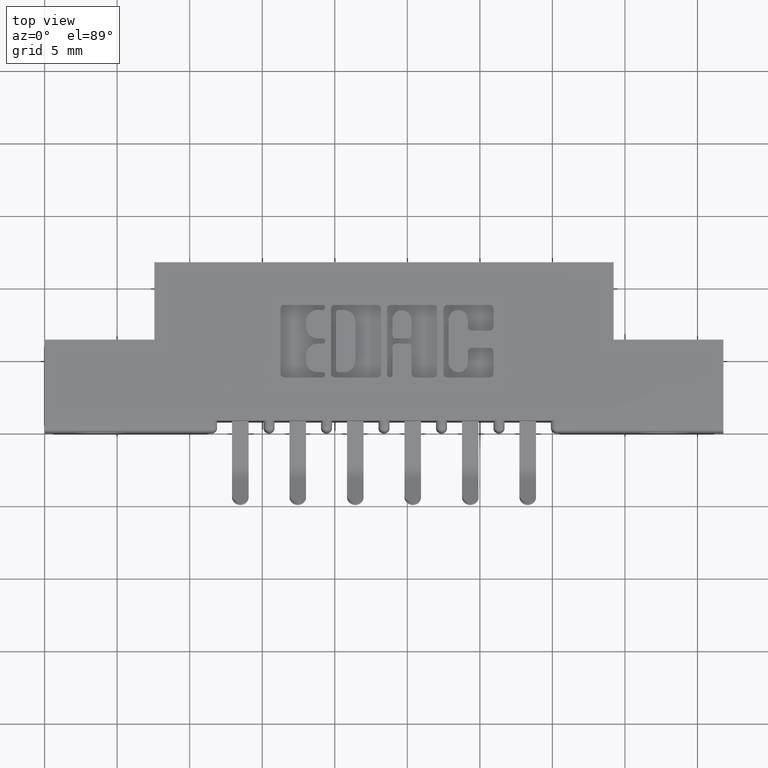
[diagram: clean part render]
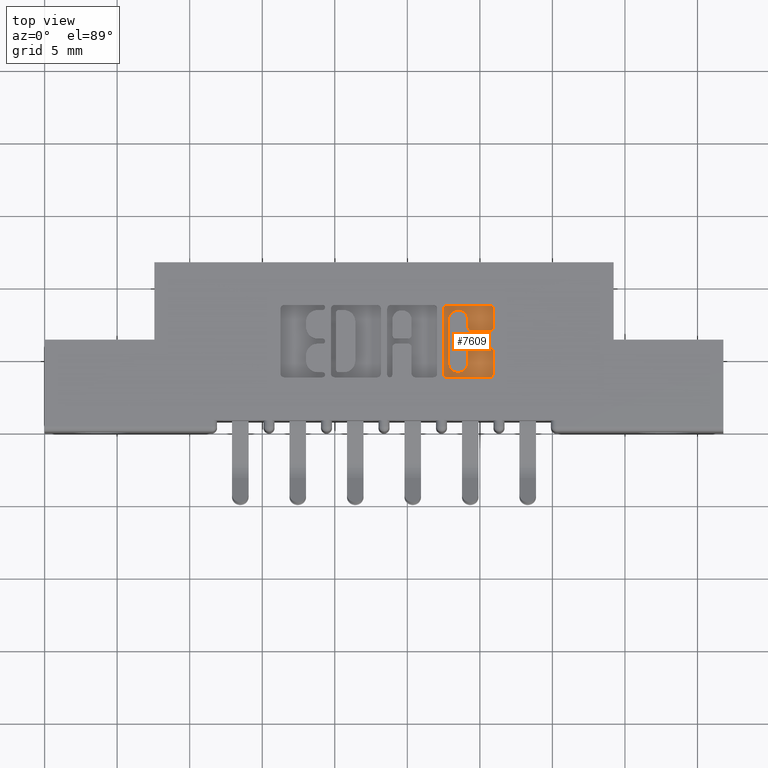
[diagram: same view with one face highlighted and labeled with its STEP entity id]
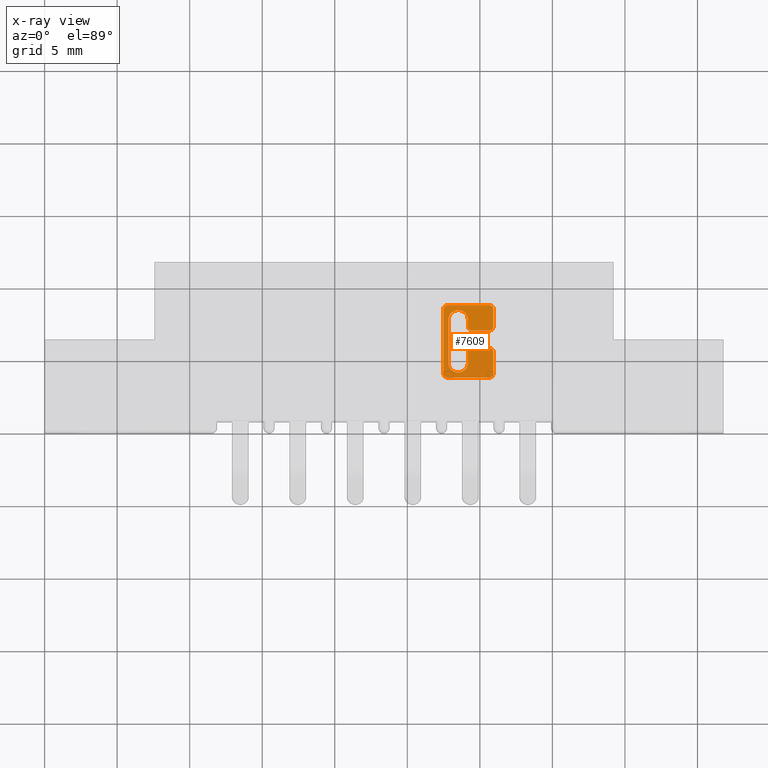
[diagram: x-ray of the same camera — body ghosted, the highlighted face saturated]
A machine part, top view. The second image highlights one B-rep face of the part: STEP entity #7609.
The next image is the same camera in x-ray: the body ghosted, the highlighted face saturated — about 0% of this face is hidden behind the body in this view.
In plain terms, the highlighted planar face has unit normal (0, 0, 1).
Its self-contained STEP definition (entity closure, byte-faithful):
#71 = LINE ( 'NONE', #11065, #3608 ) ;
#191 = CARTESIAN_POINT ( 'NONE',  ( 1.092038053301299700, 0.3338410318342129300, -0.01000000000000000000 ) ) ;
#378 = VERTEX_POINT ( 'NONE', #1922 ) ;
#396 = CARTESIAN_POINT ( 'NONE',  ( 0.0000000000000000000, 0.1473432979619860000, -0.01000000000000000000 ) ) ;
#532 = CIRCLE ( 'NONE', #11893, 0.009815670203806345400 ) ;
#617 = DIRECTION ( 'NONE',  ( 1.000000000000000000, 0.0000000000000000000, 0.0000000000000000000 ) ) ;
#834 = DIRECTION ( 'NONE',  ( -0.0000000000000000000, 0.0000000000000000000, 1.000000000000000000 ) ) ;
#968 = CIRCLE ( 'NONE', #1345, 0.02625691779518022500 ) ;
#983 = VECTOR ( 'NONE', #3411, 39.37007874015748100 ) ;
#1052 = DIRECTION ( 'NONE',  ( -0.0000000000000000000, 0.0000000000000000000, 1.000000000000000000 ) ) ;
#1060 = VERTEX_POINT ( 'NONE', #3139 ) ;
#1065 = CARTESIAN_POINT ( 'NONE',  ( 1.217678631909972400, 0.0000000000000000000, -0.01000000000000000000 ) ) ;
#1075 = AXIS2_PLACEMENT_3D ( 'NONE', #1984, #4944, #2025 ) ;
#1110 = LINE ( 'NONE', #11404, #7109 ) ;
#1145 = CIRCLE ( 'NONE', #4721, 0.009815670203840084000 ) ;
#1159 = LINE ( 'NONE', #1065, #10707 ) ;
#1321 = DIRECTION ( 'NONE',  ( 1.000000000000000000, 0.0000000000000000000, 0.0000000000000000000 ) ) ;
#1342 = ORIENTED_EDGE ( 'NONE', *, *, #8983, .T. ) ;
#1345 = AXIS2_PLACEMENT_3D ( 'NONE', #7466, #834, #3555 ) ;
#1363 = DIRECTION ( 'NONE',  ( -0.0000000000000000000, 0.0000000000000000000, 1.000000000000000000 ) ) ;
#1442 = CARTESIAN_POINT ( 'NONE',  ( 1.095964321382818700, 0.3036578459575323700, -0.01000000000000000000 ) ) ;
#1517 = CARTESIAN_POINT ( 'NONE',  ( 1.148478156973179200, 0.0000000000000000000, -0.01000000000000000000 ) ) ;
#1533 = AXIS2_PLACEMENT_3D ( 'NONE', #9051, #3623, #10318 ) ;
#1640 = EDGE_CURVE ( 'NONE', #6749, #10110, #9023, .T. ) ;
#1676 = EDGE_CURVE ( 'NONE', #378, #6762, #7702, .T. ) ;
#1699 = CIRCLE ( 'NONE', #11765, 0.009815670203804980100 ) ;
#1740 = LINE ( 'NONE', #4655, #11559 ) ;
#1922 = CARTESIAN_POINT ( 'NONE',  ( 1.082222383097458900, 0.3338410318342129300, -0.01000000000000000000 ) ) ;
#1984 = CARTESIAN_POINT ( 'NONE',  ( 1.122221239177992400, 0.3036578459575323700, -0.01000000000000000000 ) ) ;
#2025 = DIRECTION ( 'NONE',  ( 1.000000000000000000, 0.0000000000000000000, 0.0000000000000000000 ) ) ;
#2111 = CARTESIAN_POINT ( 'NONE',  ( 1.207862961706167400, 0.2744562271012364100, -0.01000000000000000000 ) ) ;
#2155 = EDGE_CURVE ( 'NONE', #10110, #4947, #9916, .T. ) ;
#2209 = CARTESIAN_POINT ( 'NONE',  ( 1.207862961706134500, 0.1473432979619860000, -0.01000000000000000000 ) ) ;
#2215 = ORIENTED_EDGE ( 'NONE', *, *, #10532, .F. ) ;
#2219 = CARTESIAN_POINT ( 'NONE',  ( 1.207862961706156900, 0.2268502266127603600, -0.01000000000000000000 ) ) ;
#2268 = AXIS2_PLACEMENT_3D ( 'NONE', #8029, #1363, #1321 ) ;
#2342 = CARTESIAN_POINT ( 'NONE',  ( 1.082222383097458900, 0.0000000000000000000, -0.01000000000000000000 ) ) ;
#2346 = EDGE_CURVE ( 'NONE', #4371, #8550, #1110, .T. ) ;
#2460 = EDGE_CURVE ( 'NONE', #6867, #378, #3336, .T. ) ;
#2612 = CARTESIAN_POINT ( 'NONE',  ( 0.0000000000000000000, 0.3436567020380538200, -0.01000000000000000000 ) ) ;
#2697 = ORIENTED_EDGE ( 'NONE', *, *, #9159, .T. ) ;
#2744 = DIRECTION ( 'NONE',  ( 0.0000000000000000000, -1.000000000000000000, 0.0000000000000000000 ) ) ;
#2758 = EDGE_CURVE ( 'NONE', #8383, #5650, #10814, .T. ) ;
#2794 = PLANE ( 'NONE',  #6380 ) ;
#2899 = EDGE_CURVE ( 'NONE', #5650, #4526, #4101, .T. ) ;
#2985 = DIRECTION ( 'NONE',  ( 1.000000000000000000, 0.0000000000000000000, 0.0000000000000000000 ) ) ;
#3004 = EDGE_CURVE ( 'NONE', #3261, #6749, #532, .T. ) ;
#3070 = CARTESIAN_POINT ( 'NONE',  ( 1.217678631909940400, 0.1571589681657857800, -0.01000000000000000000 ) ) ;
#3139 = CARTESIAN_POINT ( 'NONE',  ( 1.217678631909972400, 0.3338410318341976700, -0.01000000000000000000 ) ) ;
#3222 = VECTOR ( 'NONE', #10212, 39.37007874015748100 ) ;
#3261 = VERTEX_POINT ( 'NONE', #2209 ) ;
#3275 = ORIENTED_EDGE ( 'NONE', *, *, #8695, .T. ) ;
#3336 = CIRCLE ( 'NONE', #8092, 0.009815670203840767500 ) ;
#3374 = CIRCLE ( 'NONE', #4637, 0.009815670203806754800 ) ;
#3411 = DIRECTION ( 'NONE',  ( 0.0000000000000000000, -1.000000000000000000, 0.0000000000000000000 ) ) ;
#3438 = ORIENTED_EDGE ( 'NONE', *, *, #4125, .T. ) ;
#3533 = DIRECTION ( 'NONE',  ( -0.0000000000000000000, 0.0000000000000000000, 1.000000000000000000 ) ) ;
#3555 = DIRECTION ( 'NONE',  ( 1.000000000000000000, 0.0000000000000000000, 0.0000000000000000000 ) ) ;
#3608 = VECTOR ( 'NONE', #5361, 39.37007874015748100 ) ;
#3623 = DIRECTION ( 'NONE',  ( -0.0000000000000000000, 0.0000000000000000000, 1.000000000000000000 ) ) ;
#3934 = CARTESIAN_POINT ( 'NONE',  ( 1.217678631909940400, 0.2170345564089732300, -0.01000000000000000000 ) ) ;
#3938 = CARTESIAN_POINT ( 'NONE',  ( 1.148478156973179200, 0.1873421540424558300, -0.01000000000000000000 ) ) ;
#4101 = LINE ( 'NONE', #1517, #5597 ) ;
#4125 = EDGE_CURVE ( 'NONE', #9204, #6867, #8299, .T. ) ;
#4245 = DIRECTION ( 'NONE',  ( 1.000000000000000000, 0.0000000000000000000, 0.0000000000000000000 ) ) ;
#4371 = VERTEX_POINT ( 'NONE', #9741 ) ;
#4406 = DIRECTION ( 'NONE',  ( 0.0000000000000000000, -1.000000000000000000, 0.0000000000000000000 ) ) ;
#4480 = ORIENTED_EDGE ( 'NONE', *, *, #1640, .T. ) ;
#4526 = VERTEX_POINT ( 'NONE', #3938 ) ;
#4637 = AXIS2_PLACEMENT_3D ( 'NONE', #5310, #9941, #4245 ) ;
#4655 = CARTESIAN_POINT ( 'NONE',  ( 0.0000000000000000000, 0.2268502266127603600, -0.01000000000000000000 ) ) ;
#4672 = VERTEX_POINT ( 'NONE', #8796 ) ;
#4721 = AXIS2_PLACEMENT_3D ( 'NONE', #9258, #3533, #5475 ) ;
#4722 = ORIENTED_EDGE ( 'NONE', *, *, #9093, .T. ) ;
#4834 = ORIENTED_EDGE ( 'NONE', *, *, #2155, .T. ) ;
#4944 = DIRECTION ( 'NONE',  ( -0.0000000000000000000, 0.0000000000000000000, 1.000000000000000000 ) ) ;
#4947 = VERTEX_POINT ( 'NONE', #2219 ) ;
#5216 = FACE_OUTER_BOUND ( 'NONE', #12195, .T. ) ;
#5249 = CARTESIAN_POINT ( 'NONE',  ( 1.207862961706167400, 0.2842718973050414900, -0.01000000000000000000 ) ) ;
#5254 = ORIENTED_EDGE ( 'NONE', *, *, #9881, .T. ) ;
#5284 = CARTESIAN_POINT ( 'NONE',  ( 1.148478156973179200, 0.2170345564089715100, -0.01000000000000000000 ) ) ;
#5310 = CARTESIAN_POINT ( 'NONE',  ( 1.092038053301265700, 0.1571589681657927500, -0.01000000000000000000 ) ) ;
#5361 = DIRECTION ( 'NONE',  ( 0.0000000000000000000, 1.000000000000000000, -0.0000000000000000000 ) ) ;
#5362 = CARTESIAN_POINT ( 'NONE',  ( 1.148478156973166100, 0.2842718973050480400, -0.01000000000000000000 ) ) ;
#5438 = VECTOR ( 'NONE', #6976, 39.37007874015748100 ) ;
#5475 = DIRECTION ( 'NONE',  ( 1.000000000000000000, 0.0000000000000000000, 0.0000000000000000000 ) ) ;
#5597 = VECTOR ( 'NONE', #4406, 39.37007874015748100 ) ;
#5650 = VERTEX_POINT ( 'NONE', #5284 ) ;
#5674 = CARTESIAN_POINT ( 'NONE',  ( 1.158293827176967400, 0.2268502266127603600, -0.01000000000000000000 ) ) ;
#5741 = EDGE_CURVE ( 'NONE', #12014, #8950, #71, .T. ) ;
#5978 = CARTESIAN_POINT ( 'NONE',  ( 1.082222383097458900, 0.1571589681657927500, -0.01000000000000000000 ) ) ;
#6271 = DIRECTION ( 'NONE',  ( 1.000000000000000000, 0.0000000000000000000, 0.0000000000000000000 ) ) ;
#6278 = DIRECTION ( 'NONE',  ( 0.0000000000000000000, 1.000000000000000000, -0.0000000000000000000 ) ) ;
#6380 = AXIS2_PLACEMENT_3D ( 'NONE', #12232, #12192, #11411 ) ;
#6749 = VERTEX_POINT ( 'NONE', #3070 ) ;
#6762 = VERTEX_POINT ( 'NONE', #5978 ) ;
#6771 = CARTESIAN_POINT ( 'NONE',  ( 1.207862961706134500, 0.1571589681657927500, -0.01000000000000000000 ) ) ;
#6867 = VERTEX_POINT ( 'NONE', #7766 ) ;
#6875 = VERTEX_POINT ( 'NONE', #2111 ) ;
#6976 = DIRECTION ( 'NONE',  ( 1.000000000000000000, 0.0000000000000000000, 0.0000000000000000000 ) ) ;
#7087 = LINE ( 'NONE', #8941, #12112 ) ;
#7109 = VECTOR ( 'NONE', #2744, 39.37007874015748100 ) ;
#7141 = ORIENTED_EDGE ( 'NONE', *, *, #12303, .F. ) ;
#7151 = ORIENTED_EDGE ( 'NONE', *, *, #12141, .T. ) ;
#7161 = ORIENTED_EDGE ( 'NONE', *, *, #1676, .T. ) ;
#7350 = ORIENTED_EDGE ( 'NONE', *, *, #2899, .T. ) ;
#7466 = CARTESIAN_POINT ( 'NONE',  ( 1.122221239177999100, 0.1873421540424558300, -0.01000000000000000000 ) ) ;
#7609 = ADVANCED_FACE ( 'NONE', ( #5216 ), #2794, .T. ) ;
#7612 = ORIENTED_EDGE ( 'NONE', *, *, #2758, .T. ) ;
#7686 = CARTESIAN_POINT ( 'NONE',  ( 1.095964321382818700, 0.1873421540424558300, -0.01000000000000000000 ) ) ;
#7702 = LINE ( 'NONE', #2342, #983 ) ;
#7730 = DIRECTION ( 'NONE',  ( 1.000000000000000000, 0.0000000000000000000, 0.0000000000000000000 ) ) ;
#7766 = CARTESIAN_POINT ( 'NONE',  ( 1.092038053301299700, 0.3436567020380538200, -0.01000000000000000000 ) ) ;
#7983 = LINE ( 'NONE', #396, #5438 ) ;
#8029 = CARTESIAN_POINT ( 'NONE',  ( 1.158293827176967400, 0.2170345564089724000, -0.01000000000000000000 ) ) ;
#8092 = AXIS2_PLACEMENT_3D ( 'NONE', #191, #8746, #2985 ) ;
#8246 = DIRECTION ( 'NONE',  ( -0.0000000000000000000, 0.0000000000000000000, 1.000000000000000000 ) ) ;
#8293 = CIRCLE ( 'NONE', #1075, 0.02625691779517367100 ) ;
#8299 = LINE ( 'NONE', #2612, #3222 ) ;
#8371 = AXIS2_PLACEMENT_3D ( 'NONE', #11921, #10151, #617 ) ;
#8383 = VERTEX_POINT ( 'NONE', #5674 ) ;
#8461 = CIRCLE ( 'NONE', #8371, 0.009815670203811535700 ) ;
#8550 = VERTEX_POINT ( 'NONE', #5362 ) ;
#8695 = EDGE_CURVE ( 'NONE', #12023, #1060, #1159, .T. ) ;
#8718 = VECTOR ( 'NONE', #6278, 39.37007874015748100 ) ;
#8746 = DIRECTION ( 'NONE',  ( -0.0000000000000000000, 0.0000000000000000000, 1.000000000000000000 ) ) ;
#8796 = CARTESIAN_POINT ( 'NONE',  ( 1.158293827176977600, 0.2744562271012364100, -0.01000000000000000000 ) ) ;
#8802 = VERTEX_POINT ( 'NONE', #10643 ) ;
#8941 = CARTESIAN_POINT ( 'NONE',  ( 0.0000000000000000000, 0.2744562271012364100, -0.01000000000000000000 ) ) ;
#8950 = VERTEX_POINT ( 'NONE', #1442 ) ;
#8983 = EDGE_CURVE ( 'NONE', #6762, #8802, #3374, .T. ) ;
#9023 = LINE ( 'NONE', #10929, #8718 ) ;
#9051 = CARTESIAN_POINT ( 'NONE',  ( 1.207862961706153400, 0.2170345564089732300, -0.01000000000000000000 ) ) ;
#9093 = EDGE_CURVE ( 'NONE', #1060, #9204, #1145, .T. ) ;
#9159 = EDGE_CURVE ( 'NONE', #4947, #8383, #1740, .T. ) ;
#9204 = VERTEX_POINT ( 'NONE', #11247 ) ;
#9258 = CARTESIAN_POINT ( 'NONE',  ( 1.207862961706132300, 0.3338410318342137600, -0.01000000000000000000 ) ) ;
#9423 = CARTESIAN_POINT ( 'NONE',  ( 1.217678631909972400, 0.2842718973050414900, -0.01000000000000000000 ) ) ;
#9467 = DIRECTION ( 'NONE',  ( -1.000000000000000000, 0.0000000000000000000, 0.0000000000000000000 ) ) ;
#9607 = DIRECTION ( 'NONE',  ( 0.0000000000000000000, 1.000000000000000000, -0.0000000000000000000 ) ) ;
#9686 = ORIENTED_EDGE ( 'NONE', *, *, #3004, .T. ) ;
#9741 = CARTESIAN_POINT ( 'NONE',  ( 1.148478156973166100, 0.3036578454992627200, -0.01000000000000000000 ) ) ;
#9838 = DIRECTION ( 'NONE',  ( 1.000000000000000000, 0.0000000000000000000, 0.0000000000000000000 ) ) ;
#9881 = EDGE_CURVE ( 'NONE', #8550, #4672, #8461, .T. ) ;
#9916 = CIRCLE ( 'NONE', #1533, 0.009815670203787086500 ) ;
#9941 = DIRECTION ( 'NONE',  ( -0.0000000000000000000, 0.0000000000000000000, 1.000000000000000000 ) ) ;
#10110 = VERTEX_POINT ( 'NONE', #3934 ) ;
#10151 = DIRECTION ( 'NONE',  ( -0.0000000000000000000, 0.0000000000000000000, 1.000000000000000000 ) ) ;
#10212 = DIRECTION ( 'NONE',  ( -1.000000000000000000, 0.0000000000000000000, 0.0000000000000000000 ) ) ;
#10318 = DIRECTION ( 'NONE',  ( 1.000000000000000000, 0.0000000000000000000, 0.0000000000000000000 ) ) ;
#10510 = ORIENTED_EDGE ( 'NONE', *, *, #12106, .T. ) ;
#10532 = EDGE_CURVE ( 'NONE', #4371, #8950, #8293, .T. ) ;
#10643 = CARTESIAN_POINT ( 'NONE',  ( 1.092038053301265700, 0.1473432979619860000, -0.01000000000000000000 ) ) ;
#10707 = VECTOR ( 'NONE', #9607, 39.37007874015748100 ) ;
#10712 = ORIENTED_EDGE ( 'NONE', *, *, #2460, .T. ) ;
#10814 = CIRCLE ( 'NONE', #2268, 0.009815670203788042300 ) ;
#10874 = ORIENTED_EDGE ( 'NONE', *, *, #5741, .T. ) ;
#10905 = ORIENTED_EDGE ( 'NONE', *, *, #2346, .T. ) ;
#10929 = CARTESIAN_POINT ( 'NONE',  ( 1.217678631909940400, 0.0000000000000000000, -0.01000000000000000000 ) ) ;
#11065 = CARTESIAN_POINT ( 'NONE',  ( 1.095964321382818700, 0.0000000000000000000, -0.01000000000000000000 ) ) ;
#11247 = CARTESIAN_POINT ( 'NONE',  ( 1.207862961706168700, 0.3436567020380538200, -0.01000000000000000000 ) ) ;
#11404 = CARTESIAN_POINT ( 'NONE',  ( 1.148478156973166100, 0.0000000000000000000, -0.01000000000000000000 ) ) ;
#11411 = DIRECTION ( 'NONE',  ( 1.000000000000000000, 0.0000000000000000000, 0.0000000000000000000 ) ) ;
#11559 = VECTOR ( 'NONE', #9467, 39.37007874015748100 ) ;
#11765 = AXIS2_PLACEMENT_3D ( 'NONE', #5249, #8246, #6271 ) ;
#11893 = AXIS2_PLACEMENT_3D ( 'NONE', #6771, #1052, #7730 ) ;
#11921 = CARTESIAN_POINT ( 'NONE',  ( 1.158293827176977600, 0.2842718973050480400, -0.01000000000000000000 ) ) ;
#12014 = VERTEX_POINT ( 'NONE', #7686 ) ;
#12023 = VERTEX_POINT ( 'NONE', #9423 ) ;
#12106 = EDGE_CURVE ( 'NONE', #8802, #3261, #7983, .T. ) ;
#12112 = VECTOR ( 'NONE', #9838, 39.37007874015748100 ) ;
#12141 = EDGE_CURVE ( 'NONE', #4672, #6875, #7087, .T. ) ;
#12192 = DIRECTION ( 'NONE',  ( -0.0000000000000000000, 0.0000000000000000000, 1.000000000000000000 ) ) ;
#12195 = EDGE_LOOP ( 'NONE', ( #7151, #12233, #3275, #4722, #3438, #10712, #7161, #1342, #10510, #9686, #4480, #4834, #2697, #7612, #7350, #7141, #10874, #2215, #10905, #5254 ) ) ;
#12232 = CARTESIAN_POINT ( 'NONE',  ( 0.0000000000000000000, 0.0000000000000000000, -0.01000000000000000000 ) ) ;
#12233 = ORIENTED_EDGE ( 'NONE', *, *, #12242, .T. ) ;
#12242 = EDGE_CURVE ( 'NONE', #6875, #12023, #1699, .T. ) ;
#12303 = EDGE_CURVE ( 'NONE', #12014, #4526, #968, .T. ) ;